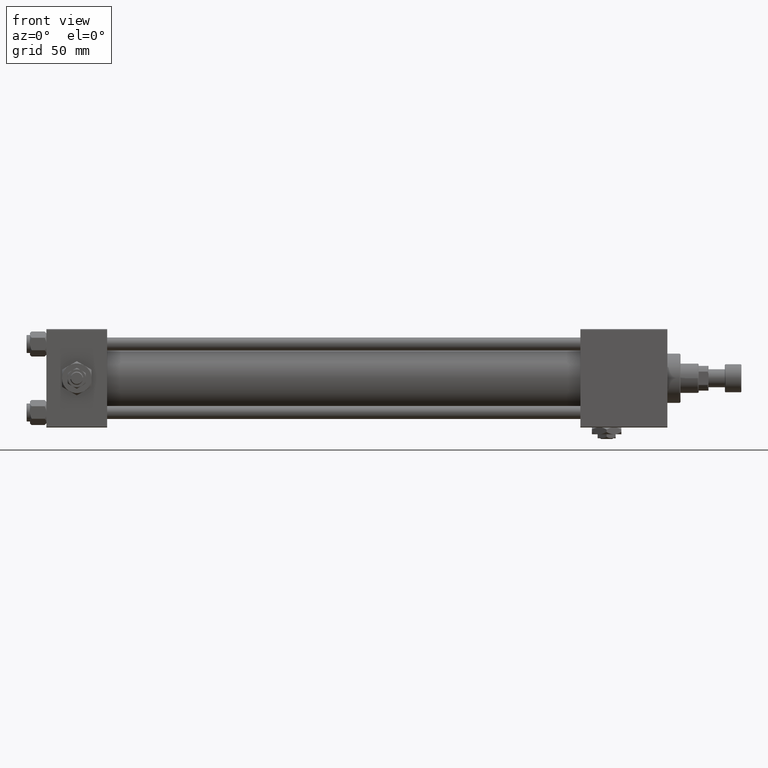
[diagram: clean part render]
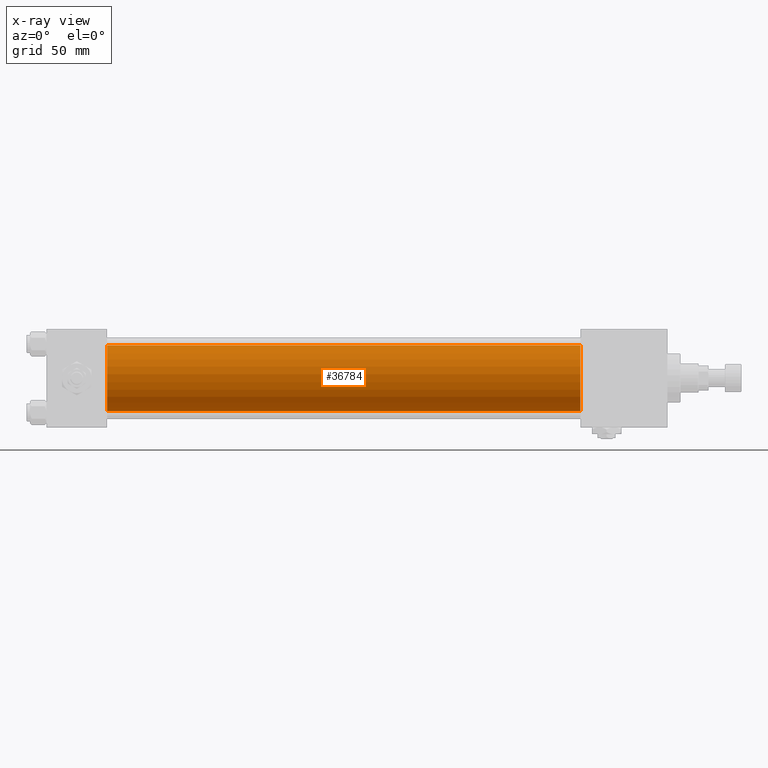
[diagram: x-ray — body ghosted, one internal face saturated and labeled with its STEP entity id]
A machine part, front view, then the same camera in x-ray: the body is ghosted and one INTERNAL B-rep face — a face not visible from any outside direction — is saturated and labeled: STEP entity #36784.
In plain terms, the highlighted cylindrical surface (edge-blend (fillet) strip) has radius 20 mm, axis along (-1, -0, -0).
Its self-contained STEP definition (entity closure, byte-faithful):
#2695 = ORIENTED_EDGE ( 'NONE', *, *, #21440, .F. ) ;
#3973 = DIRECTION ( 'NONE',  ( -1.000000000000000000, -0.000000000000000000, -0.000000000000000000 ) ) ;
#4612 = CARTESIAN_POINT ( 'NONE',  ( 37.00000000000000000, -2.602085213965210642E-15, 0.000000000000000000 ) ) ;
#5536 = ORIENTED_EDGE ( 'NONE', *, *, #28370, .F. ) ;
#6325 = DIRECTION ( 'NONE',  ( -1.000000000000000000, -0.000000000000000000, -0.000000000000000000 ) ) ;
#8245 = VERTEX_POINT ( 'NONE', #42111 ) ;
#8803 = EDGE_CURVE ( 'NONE', #16247, #40304, #40794, .T. ) ;
#9036 = FACE_OUTER_BOUND ( 'NONE', #11400, .T. ) ;
#9198 = CARTESIAN_POINT ( 'NONE',  ( 324.9999999999999432, -2.602085213965210642E-15, 0.000000000000000000 ) ) ;
#11400 = EDGE_LOOP ( 'NONE', ( #20075, #43140, #2695, #5536 ) ) ;
#11543 = AXIS2_PLACEMENT_3D ( 'NONE', #49995, #25261, #34299 ) ;
#13294 = CYLINDRICAL_SURFACE ( 'NONE', #11543, 20.00000000000000000 ) ;
#16247 = VERTEX_POINT ( 'NONE', #28723 ) ;
#17493 = EDGE_CURVE ( 'NONE', #40304, #47892, #24178, .T. ) ;
#20075 = ORIENTED_EDGE ( 'NONE', *, *, #8803, .T. ) ;
#20834 = DIRECTION ( 'NONE',  ( 0.000000000000000000, 0.000000000000000000, -1.000000000000000000 ) ) ;
#21440 = EDGE_CURVE ( 'NONE', #8245, #47892, #26448, .T. ) ;
#24178 = LINE ( 'NONE', #44389, #30679 ) ;
#25261 = DIRECTION ( 'NONE',  ( -1.000000000000000000, -0.000000000000000000, -0.000000000000000000 ) ) ;
#25348 = DIRECTION ( 'NONE',  ( 1.000000000000000000, 0.000000000000000000, 0.000000000000000000 ) ) ;
#26448 = CIRCLE ( 'NONE', #30708, 20.00000000000000000 ) ;
#28370 = EDGE_CURVE ( 'NONE', #16247, #8245, #37974, .T. ) ;
#28723 = CARTESIAN_POINT ( 'NONE',  ( 324.9999999999999432, -2.602085213965210642E-15, 20.00000000000000000 ) ) ;
#29425 = DIRECTION ( 'NONE',  ( 0.000000000000000000, 0.000000000000000000, -1.000000000000000000 ) ) ;
#30679 = VECTOR ( 'NONE', #3973, 1000.000000000000000 ) ;
#30708 = AXIS2_PLACEMENT_3D ( 'NONE', #4612, #25348, #20834 ) ;
#32850 = CARTESIAN_POINT ( 'NONE',  ( 37.00000000000000000, -1.527916156705042519E-16, -20.00000000000000000 ) ) ;
#34299 = DIRECTION ( 'NONE',  ( 0.000000000000000000, 0.000000000000000000, 1.000000000000000000 ) ) ;
#35704 = AXIS2_PLACEMENT_3D ( 'NONE', #9198, #36329, #29425 ) ;
#36329 = DIRECTION ( 'NONE',  ( 1.000000000000000000, 0.000000000000000000, 0.000000000000000000 ) ) ;
#36784 = ADVANCED_FACE ( 'NONE', ( #9036 ), #13294, .F. ) ;
#37974 = LINE ( 'NONE', #50760, #41977 ) ;
#40304 = VERTEX_POINT ( 'NONE', #46251 ) ;
#40794 = CIRCLE ( 'NONE', #35704, 20.00000000000000000 ) ;
#41977 = VECTOR ( 'NONE', #6325, 1000.000000000000000 ) ;
#42111 = CARTESIAN_POINT ( 'NONE',  ( 37.00000000000000000, -2.602085213965210642E-15, 20.00000000000000000 ) ) ;
#43140 = ORIENTED_EDGE ( 'NONE', *, *, #17493, .T. ) ;
#44389 = CARTESIAN_POINT ( 'NONE',  ( 324.9999999999999432, -1.527916156705042519E-16, -20.00000000000000000 ) ) ;
#46251 = CARTESIAN_POINT ( 'NONE',  ( 324.9999999999999432, -1.527916156705042519E-16, -20.00000000000000000 ) ) ;
#47892 = VERTEX_POINT ( 'NONE', #32850 ) ;
#49995 = CARTESIAN_POINT ( 'NONE',  ( 324.9999999999999432, -2.602085213965210642E-15, 0.000000000000000000 ) ) ;
#50760 = CARTESIAN_POINT ( 'NONE',  ( 324.9999999999999432, -2.602085213965210642E-15, 20.00000000000000000 ) ) ;